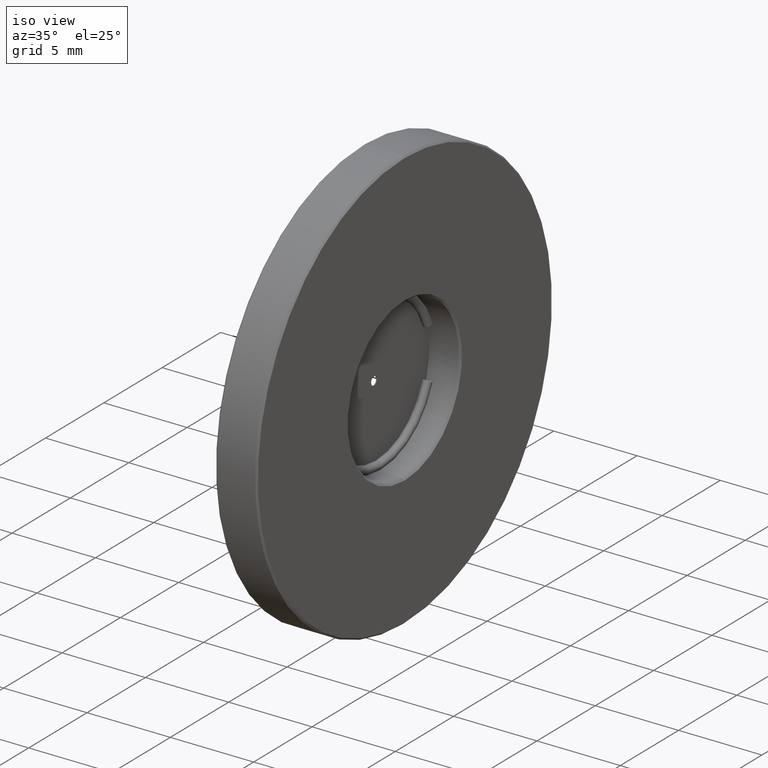
[diagram: clean part render]
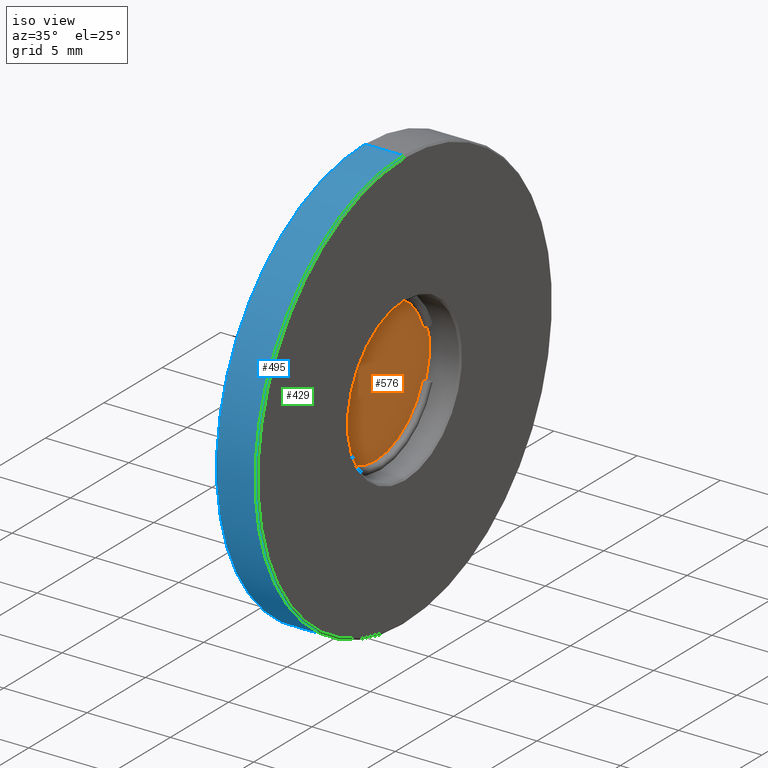
[diagram: same view with three faces highlighted in distinct colors, each labeled with its STEP entity id]
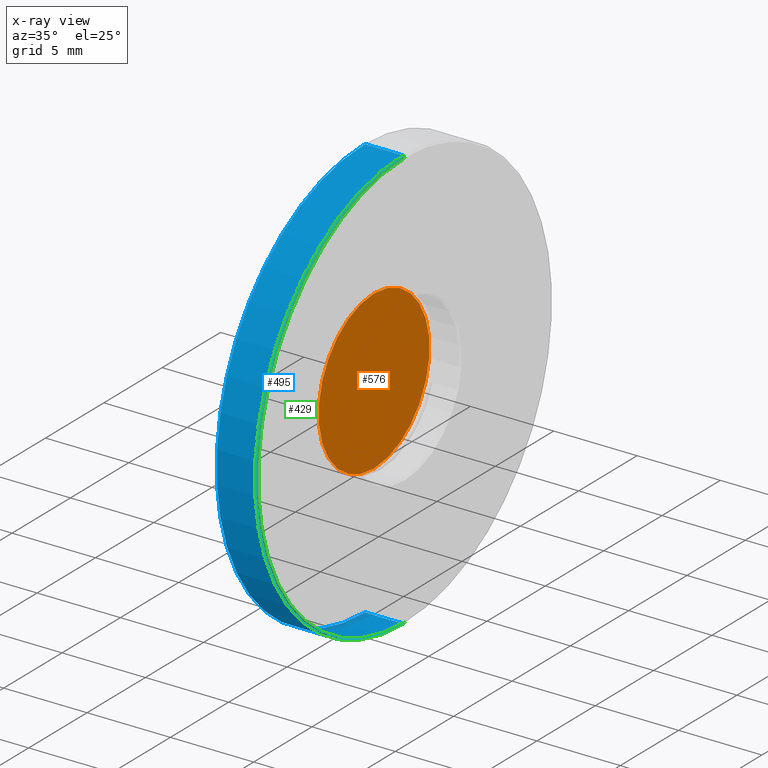
[diagram: x-ray of the same camera — body ghosted, the three highlighted faces saturated]
A machine part, iso view with three faces highlighted in distinct colors.
The next image is the same camera in x-ray (body ghosted, the three faces saturated) — at least one of them is partly hidden behind the body in this view.
Their STEP definitions:

[orange] entity #576 — the highlighted planar face has unit normal (1, 0, -0).
#54 = VERTEX_POINT ( 'NONE', #128 ) ;
#70 = PLANE ( 'NONE',  #222 ) ;
#87 = VERTEX_POINT ( 'NONE', #261 ) ;
#109 = VERTEX_POINT ( 'NONE', #516 ) ;
#113 = FACE_OUTER_BOUND ( 'NONE', #446, .T. ) ;
#127 = DIRECTION ( 'NONE',  ( 0.0000000000000000000, 0.0000000000000000000, 1.000000000000000000 ) ) ;
#128 = CARTESIAN_POINT ( 'NONE',  ( -4.284863851253205347, 1.436758841085140181, 30.14999999999999858 ) ) ;
#156 = DIRECTION ( 'NONE',  ( 1.000000000000000000, 0.0000000000000000000, 0.0000000000000000000 ) ) ;
#179 = CARTESIAN_POINT ( 'NONE',  ( -4.284863851253205347, 1.436758841085140181, 25.39999999999999858 ) ) ;
#222 = AXIS2_PLACEMENT_3D ( 'NONE', #638, #568, #127 ) ;
#261 = CARTESIAN_POINT ( 'NONE',  ( -4.284863851253205347, 1.436758841085140181, 25.64999999999999858 ) ) ;
#264 = AXIS2_PLACEMENT_3D ( 'NONE', #179, #318, #770 ) ;
#318 = DIRECTION ( 'NONE',  ( 1.000000000000000000, 0.0000000000000000000, 0.0000000000000000000 ) ) ;
#323 = EDGE_CURVE ( 'NONE', #54, #109, #668, .T. ) ;
#351 = ORIENTED_EDGE ( 'NONE', *, *, #323, .T. ) ;
#352 = DIRECTION ( 'NONE',  ( 1.000000000000000000, 0.0000000000000000000, 0.0000000000000000000 ) ) ;
#363 = AXIS2_PLACEMENT_3D ( 'NONE', #480, #156, #543 ) ;
#403 = EDGE_CURVE ( 'NONE', #109, #54, #500, .T. ) ;
#446 = EDGE_LOOP ( 'NONE', ( #351, #728 ) ) ;
#475 = CARTESIAN_POINT ( 'NONE',  ( -4.284863851253205347, 1.436758841085140181, 25.14999999999999858 ) ) ;
#480 = CARTESIAN_POINT ( 'NONE',  ( -4.284863851253205347, 1.436758841085140181, 25.39999999999999858 ) ) ;
#486 = DIRECTION ( 'NONE',  ( 0.0000000000000000000, 0.0000000000000000000, 1.000000000000000000 ) ) ;
#488 = CIRCLE ( 'NONE', #619, 0.2500000000000002220 ) ;
#500 = CIRCLE ( 'NONE', #363, 4.750000000000000888 ) ;
#516 = CARTESIAN_POINT ( 'NONE',  ( -4.284863851253205347, 1.436758841085139515, 20.64999999999999858 ) ) ;
#532 = AXIS2_PLACEMENT_3D ( 'NONE', #675, #352, #486 ) ;
#543 = DIRECTION ( 'NONE',  ( 0.0000000000000000000, 0.0000000000000000000, 1.000000000000000000 ) ) ;
#565 = EDGE_CURVE ( 'NONE', #87, #815, #827, .T. ) ;
#568 = DIRECTION ( 'NONE',  ( 1.000000000000000000, 0.0000000000000000000, -0.0000000000000000000 ) ) ;
#576 = ADVANCED_FACE ( 'NONE', ( #113, #779 ), #70, .T. ) ;
#619 = AXIS2_PLACEMENT_3D ( 'NONE', #742, #667, #738 ) ;
#638 = CARTESIAN_POINT ( 'NONE',  ( -4.284863851253205347, 1.436758841085140181, 25.39999999999999858 ) ) ;
#667 = DIRECTION ( 'NONE',  ( 1.000000000000000000, 0.0000000000000000000, 0.0000000000000000000 ) ) ;
#668 = CIRCLE ( 'NONE', #532, 4.750000000000000888 ) ;
#675 = CARTESIAN_POINT ( 'NONE',  ( -4.284863851253205347, 1.436758841085140181, 25.39999999999999858 ) ) ;
#726 = ORIENTED_EDGE ( 'NONE', *, *, #772, .F. ) ;
#728 = ORIENTED_EDGE ( 'NONE', *, *, #403, .T. ) ;
#738 = DIRECTION ( 'NONE',  ( 0.0000000000000000000, 0.0000000000000000000, 1.000000000000000000 ) ) ;
#739 = ORIENTED_EDGE ( 'NONE', *, *, #565, .F. ) ;
#741 = EDGE_LOOP ( 'NONE', ( #726, #739 ) ) ;
#742 = CARTESIAN_POINT ( 'NONE',  ( -4.284863851253205347, 1.436758841085140181, 25.39999999999999858 ) ) ;
#770 = DIRECTION ( 'NONE',  ( 0.0000000000000000000, 0.0000000000000000000, 1.000000000000000000 ) ) ;
#772 = EDGE_CURVE ( 'NONE', #815, #87, #488, .T. ) ;
#779 = FACE_BOUND ( 'NONE', #741, .T. ) ;
#815 = VERTEX_POINT ( 'NONE', #475 ) ;
#827 = CIRCLE ( 'NONE', #264, 0.2500000000000002220 ) ;

[blue] entity #495 — the highlighted cylindrical surface (partial cylindrical patch) has radius 12.7 mm, axis along (-1, -0, -0).
#86 = DIRECTION ( 'NONE',  ( -1.000000000000000000, -0.0000000000000000000, -0.0000000000000000000 ) ) ;
#97 = VERTEX_POINT ( 'NONE', #195 ) ;
#115 = ORIENTED_EDGE ( 'NONE', *, *, #630, .T. ) ;
#163 = CARTESIAN_POINT ( 'NONE',  ( -2.534863851253199574, 1.436758841085141070, 38.09999999999999432 ) ) ;
#164 = AXIS2_PLACEMENT_3D ( 'NONE', #708, #577, #253 ) ;
#195 = CARTESIAN_POINT ( 'NONE',  ( -4.834863851253204281, 1.436758841085141070, 12.69999999999999929 ) ) ;
#218 = CYLINDRICAL_SURFACE ( 'NONE', #569, 12.69999999999999574 ) ;
#249 = DIRECTION ( 'NONE',  ( 0.0000000000000000000, 0.0000000000000000000, -1.000000000000000000 ) ) ;
#253 = DIRECTION ( 'NONE',  ( 0.0000000000000000000, 0.0000000000000000000, -1.000000000000000000 ) ) ;
#299 = ORIENTED_EDGE ( 'NONE', *, *, #677, .T. ) ;
#350 = VERTEX_POINT ( 'NONE', #163 ) ;
#367 = CARTESIAN_POINT ( 'NONE',  ( -2.434863851253203482, 1.436758841085141070, 38.09999999999999432 ) ) ;
#378 = DIRECTION ( 'NONE',  ( 1.000000000000000000, -0.0000000000000000000, -0.0000000000000000000 ) ) ;
#414 = CIRCLE ( 'NONE', #420, 12.69999999999999929 ) ;
#420 = AXIS2_PLACEMENT_3D ( 'NONE', #834, #378, #249 ) ;
#433 = VECTOR ( 'NONE', #86, 1000.000000000000000 ) ;
#443 = CARTESIAN_POINT ( 'NONE',  ( -2.434863851253203482, 1.436758841085142402, 12.69999999999999929 ) ) ;
#469 = VERTEX_POINT ( 'NONE', #626 ) ;
#473 = EDGE_LOOP ( 'NONE', ( #522, #115, #299, #670 ) ) ;
#481 = LINE ( 'NONE', #367, #433 ) ;
#495 = ADVANCED_FACE ( 'NONE', ( #789 ), #218, .T. ) ;
#507 = DIRECTION ( 'NONE',  ( -1.000000000000000000, -0.0000000000000000000, -0.0000000000000000000 ) ) ;
#522 = ORIENTED_EDGE ( 'NONE', *, *, #591, .F. ) ;
#556 = CARTESIAN_POINT ( 'NONE',  ( -2.434863851253203482, 1.436758841085141070, 25.39999999999999858 ) ) ;
#569 = AXIS2_PLACEMENT_3D ( 'NONE', #556, #763, #756 ) ;
#577 = DIRECTION ( 'NONE',  ( -1.000000000000000000, 0.0000000000000000000, 0.0000000000000000000 ) ) ;
#591 = EDGE_CURVE ( 'NONE', #814, #97, #608, .T. ) ;
#607 = EDGE_CURVE ( 'NONE', #469, #97, #414, .T. ) ;
#608 = LINE ( 'NONE', #443, #759 ) ;
#626 = CARTESIAN_POINT ( 'NONE',  ( -4.834863851253204281, 1.436758841085142402, 38.09999999999999432 ) ) ;
#630 = EDGE_CURVE ( 'NONE', #814, #350, #768, .T. ) ;
#670 = ORIENTED_EDGE ( 'NONE', *, *, #607, .T. ) ;
#677 = EDGE_CURVE ( 'NONE', #350, #469, #481, .T. ) ;
#708 = CARTESIAN_POINT ( 'NONE',  ( -2.534863851253199574, 1.436758841085141070, 25.39999999999999858 ) ) ;
#731 = CARTESIAN_POINT ( 'NONE',  ( -2.534863851253199574, 1.436758841085142402, 12.69999999999999929 ) ) ;
#756 = DIRECTION ( 'NONE',  ( 0.0000000000000000000, 0.0000000000000000000, 1.000000000000000000 ) ) ;
#759 = VECTOR ( 'NONE', #507, 1000.000000000000000 ) ;
#763 = DIRECTION ( 'NONE',  ( -1.000000000000000000, -0.0000000000000000000, -0.0000000000000000000 ) ) ;
#768 = CIRCLE ( 'NONE', #164, 12.69999999999999929 ) ;
#789 = FACE_OUTER_BOUND ( 'NONE', #473, .T. ) ;
#814 = VERTEX_POINT ( 'NONE', #731 ) ;
#834 = CARTESIAN_POINT ( 'NONE',  ( -4.834863851253204281, 1.436758841085141070, 25.39999999999999858 ) ) ;

[green] entity #429 — the highlighted conical surface has half-angle 45 deg.
#16 = DIRECTION ( 'NONE',  ( 0.0000000000000000000, 0.0000000000000000000, -1.000000000000000000 ) ) ;
#40 = DIRECTION ( 'NONE',  ( -1.000000000000000000, 0.0000000000000000000, 0.0000000000000000000 ) ) ;
#65 = ORIENTED_EDGE ( 'NONE', *, *, #198, .F. ) ;
#95 = LINE ( 'NONE', #422, #715 ) ;
#112 = EDGE_CURVE ( 'NONE', #400, #142, #820, .T. ) ;
#142 = VERTEX_POINT ( 'NONE', #641 ) ;
#153 = DIRECTION ( 'NONE',  ( -0.7071067811865414665, 8.659560562355008046E-17, -0.7071067811865536790 ) ) ;
#163 = CARTESIAN_POINT ( 'NONE',  ( -2.534863851253199574, 1.436758841085141070, 38.09999999999999432 ) ) ;
#164 = AXIS2_PLACEMENT_3D ( 'NONE', #708, #577, #253 ) ;
#196 = LINE ( 'NONE', #213, #266 ) ;
#198 = EDGE_CURVE ( 'NONE', #142, #814, #196, .T. ) ;
#213 = CARTESIAN_POINT ( 'NONE',  ( -2.434863851253203482, 1.436758841085142402, 12.79999999999999716 ) ) ;
#253 = DIRECTION ( 'NONE',  ( 0.0000000000000000000, 0.0000000000000000000, -1.000000000000000000 ) ) ;
#266 = VECTOR ( 'NONE', #153, 1000.000000000000000 ) ;
#325 = CARTESIAN_POINT ( 'NONE',  ( -2.434863851253203482, 1.436758841085141070, 25.39999999999999858 ) ) ;
#330 = FACE_OUTER_BOUND ( 'NONE', #427, .T. ) ;
#350 = VERTEX_POINT ( 'NONE', #163 ) ;
#400 = VERTEX_POINT ( 'NONE', #476 ) ;
#422 = CARTESIAN_POINT ( 'NONE',  ( -2.434863851253203482, 1.436758841085141070, 38.00000000000000000 ) ) ;
#427 = EDGE_LOOP ( 'NONE', ( #65, #563, #804, #493 ) ) ;
#429 = ADVANCED_FACE ( 'NONE', ( #330 ), #802, .T. ) ;
#476 = CARTESIAN_POINT ( 'NONE',  ( -2.434863851253203482, 1.436758841085141070, 38.00000000000000711 ) ) ;
#490 = DIRECTION ( 'NONE',  ( -0.7071067811865414665, 0.0000000000000000000, 0.7071067811865536790 ) ) ;
#493 = ORIENTED_EDGE ( 'NONE', *, *, #630, .F. ) ;
#497 = EDGE_CURVE ( 'NONE', #400, #350, #95, .T. ) ;
#498 = DIRECTION ( 'NONE',  ( 0.0000000000000000000, 0.0000000000000000000, 1.000000000000000000 ) ) ;
#563 = ORIENTED_EDGE ( 'NONE', *, *, #112, .F. ) ;
#577 = DIRECTION ( 'NONE',  ( -1.000000000000000000, 0.0000000000000000000, 0.0000000000000000000 ) ) ;
#614 = CARTESIAN_POINT ( 'NONE',  ( -2.434863851253203482, 1.436758841085141070, 25.39999999999999858 ) ) ;
#630 = EDGE_CURVE ( 'NONE', #814, #350, #768, .T. ) ;
#641 = CARTESIAN_POINT ( 'NONE',  ( -2.434863851253203482, 1.436758841085142402, 12.79999999999999716 ) ) ;
#708 = CARTESIAN_POINT ( 'NONE',  ( -2.534863851253199574, 1.436758841085141070, 25.39999999999999858 ) ) ;
#709 = DIRECTION ( 'NONE',  ( 1.000000000000000000, 0.0000000000000000000, 0.0000000000000000000 ) ) ;
#715 = VECTOR ( 'NONE', #490, 1000.000000000000000 ) ;
#731 = CARTESIAN_POINT ( 'NONE',  ( -2.534863851253199574, 1.436758841085142402, 12.69999999999999929 ) ) ;
#766 = AXIS2_PLACEMENT_3D ( 'NONE', #325, #709, #16 ) ;
#768 = CIRCLE ( 'NONE', #164, 12.69999999999999929 ) ;
#799 = AXIS2_PLACEMENT_3D ( 'NONE', #614, #40, #498 ) ;
#802 = CONICAL_SURFACE ( 'NONE', #799, 12.59999999999999964, 0.7853981633974569387 ) ;
#804 = ORIENTED_EDGE ( 'NONE', *, *, #497, .T. ) ;
#814 = VERTEX_POINT ( 'NONE', #731 ) ;
#820 = CIRCLE ( 'NONE', #766, 12.60000000000000142 ) ;